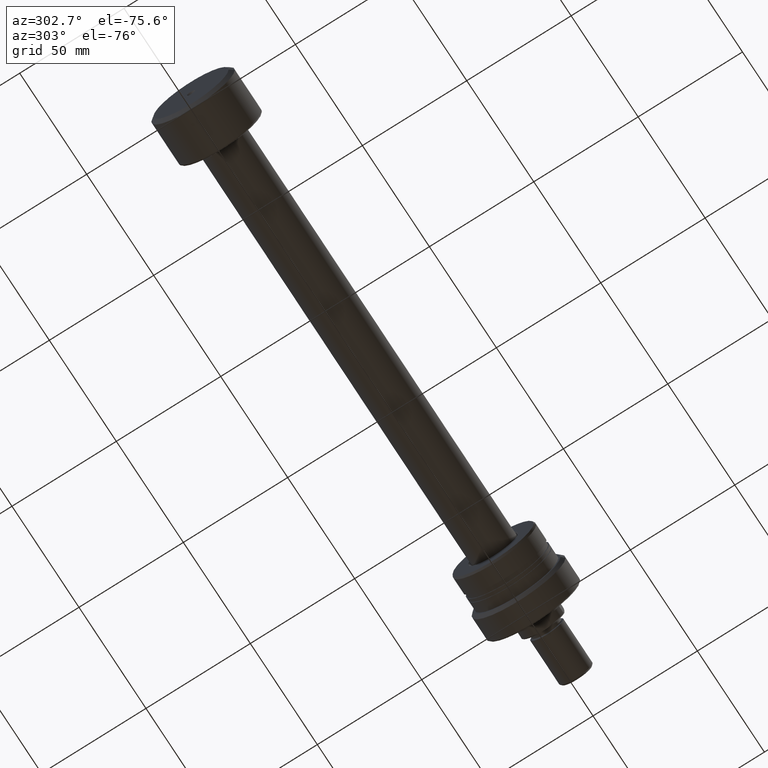
[diagram: clean part render]
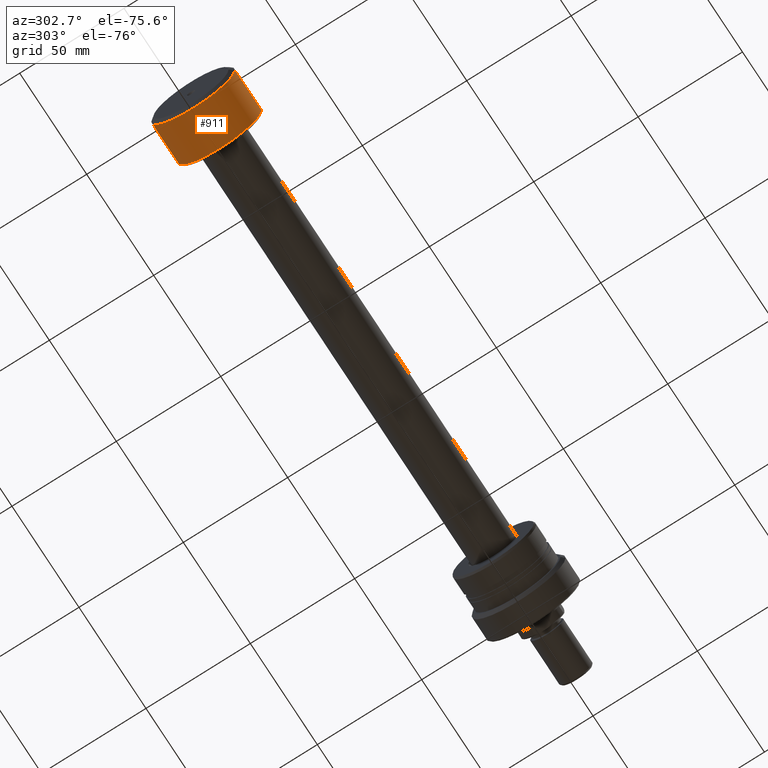
[diagram: same view with one face highlighted and labeled with its STEP entity id]
A machine part, auxiliary view. The second image highlights one B-rep face of the part: STEP entity #911.
In plain terms, the highlighted cylindrical surface (partial cylindrical patch) has radius 20 mm, axis along (-1, -0, -0).
Its self-contained STEP definition (entity closure, byte-faithful):
#30 = CARTESIAN_POINT ( 'NONE',  ( 21.40000000000000924, 2.288820569227802283E-16, 0.000000000000000000 ) ) ;
#72 = AXIS2_PLACEMENT_3D ( 'NONE', #30, #2316, #2715 ) ;
#108 = VERTEX_POINT ( 'NONE', #2064 ) ;
#167 = VECTOR ( 'NONE', #707, 1000.000000000000000 ) ;
#209 = VERTEX_POINT ( 'NONE', #1033 ) ;
#257 = CARTESIAN_POINT ( 'NONE',  ( 2.139084644138131786E-16, -20.00000000000000000, 0.000000000000000000 ) ) ;
#415 = CARTESIAN_POINT ( 'NONE',  ( 1.500000000000002887, -20.00000000000000000, 2.449293598294706513E-15 ) ) ;
#417 = VERTEX_POINT ( 'NONE', #2240 ) ;
#494 = ORIENTED_EDGE ( 'NONE', *, *, #565, .T. ) ;
#509 = EDGE_CURVE ( 'NONE', #417, #1094, #2519, .T. ) ;
#565 = EDGE_CURVE ( 'NONE', #209, #417, #1747, .T. ) ;
#592 = CIRCLE ( 'NONE', #1294, 20.00000000000000000 ) ;
#605 = FACE_OUTER_BOUND ( 'NONE', #2275, .T. ) ;
#707 = DIRECTION ( 'NONE',  ( -1.000000000000000000, -1.069542322069065801E-17, -0.000000000000000000 ) ) ;
#911 = ADVANCED_FACE ( 'NONE', ( #605 ), #1273, .T. ) ;
#999 = CARTESIAN_POINT ( 'NONE',  ( 1.500000000000002442, 1.604313483103601552E-17, 0.000000000000000000 ) ) ;
#1033 = CARTESIAN_POINT ( 'NONE',  ( 21.40000000000000924, 20.00000000000000000, 2.449293598294706513E-15 ) ) ;
#1094 = VERTEX_POINT ( 'NONE', #415 ) ;
#1169 = DIRECTION ( 'NONE',  ( 1.084202172485504434E-17, -1.000000000000000000, 0.000000000000000000 ) ) ;
#1273 = CYLINDRICAL_SURFACE ( 'NONE', #1983, 20.00000000000000000 ) ;
#1294 = AXIS2_PLACEMENT_3D ( 'NONE', #999, #1411, #1169 ) ;
#1399 = DIRECTION ( 'NONE',  ( -1.000000000000000000, -1.069542322069065801E-17, -0.000000000000000000 ) ) ;
#1411 = DIRECTION ( 'NONE',  ( -1.000000000000000000, -1.069542322069065801E-17, -0.000000000000000000 ) ) ;
#1723 = ORIENTED_EDGE ( 'NONE', *, *, #2300, .F. ) ;
#1747 = CIRCLE ( 'NONE', #72, 20.00000000000000000 ) ;
#1805 = EDGE_CURVE ( 'NONE', #108, #1094, #592, .T. ) ;
#1832 = LINE ( 'NONE', #2526, #167 ) ;
#1844 = VECTOR ( 'NONE', #1399, 1000.000000000000000 ) ;
#1954 = ORIENTED_EDGE ( 'NONE', *, *, #1805, .F. ) ;
#1983 = AXIS2_PLACEMENT_3D ( 'NONE', #2828, #2617, #2386 ) ;
#2064 = CARTESIAN_POINT ( 'NONE',  ( 1.500000000000002442, 20.00000000000000000, 0.000000000000000000 ) ) ;
#2181 = ORIENTED_EDGE ( 'NONE', *, *, #509, .T. ) ;
#2240 = CARTESIAN_POINT ( 'NONE',  ( 21.40000000000000924, -20.00000000000000000, 0.000000000000000000 ) ) ;
#2275 = EDGE_LOOP ( 'NONE', ( #1723, #494, #2181, #1954 ) ) ;
#2300 = EDGE_CURVE ( 'NONE', #209, #108, #1832, .T. ) ;
#2316 = DIRECTION ( 'NONE',  ( -1.000000000000000000, -1.069542322069065801E-17, -0.000000000000000000 ) ) ;
#2386 = DIRECTION ( 'NONE',  ( 1.069542322069065955E-17, -1.000000000000000000, 0.000000000000000000 ) ) ;
#2519 = LINE ( 'NONE', #257, #1844 ) ;
#2526 = CARTESIAN_POINT ( 'NONE',  ( -2.139084644138131786E-16, 20.00000000000000000, 2.449293598294706513E-15 ) ) ;
#2617 = DIRECTION ( 'NONE',  ( -1.000000000000000000, -1.069542322069065801E-17, -0.000000000000000000 ) ) ;
#2715 = DIRECTION ( 'NONE',  ( 0.000000000000000000, -1.000000000000000000, 0.000000000000000000 ) ) ;
#2828 = CARTESIAN_POINT ( 'NONE',  ( 0.000000000000000000, 0.000000000000000000, 0.000000000000000000 ) ) ;